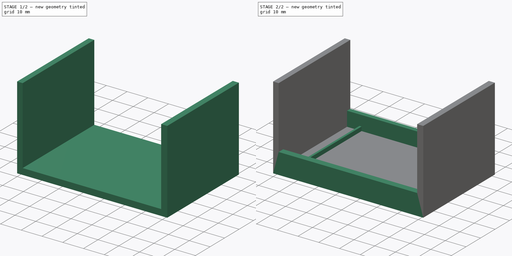
[diagram: build sequence overview — one tinted view per stage of 2, left to right]
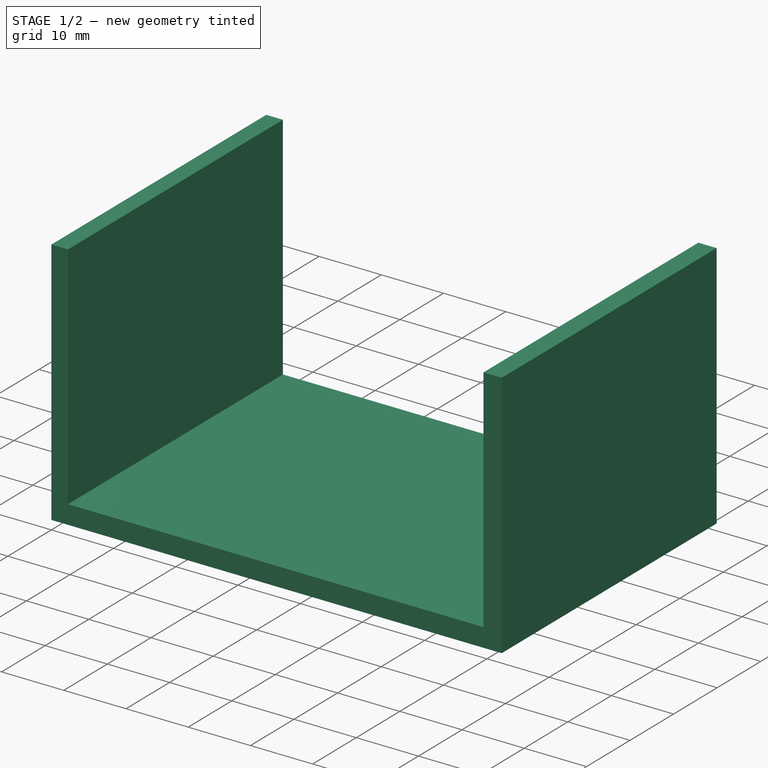
[diagram: stage 1 of 2 — iso view after this stage's code; geometry added in this stage tinted green]
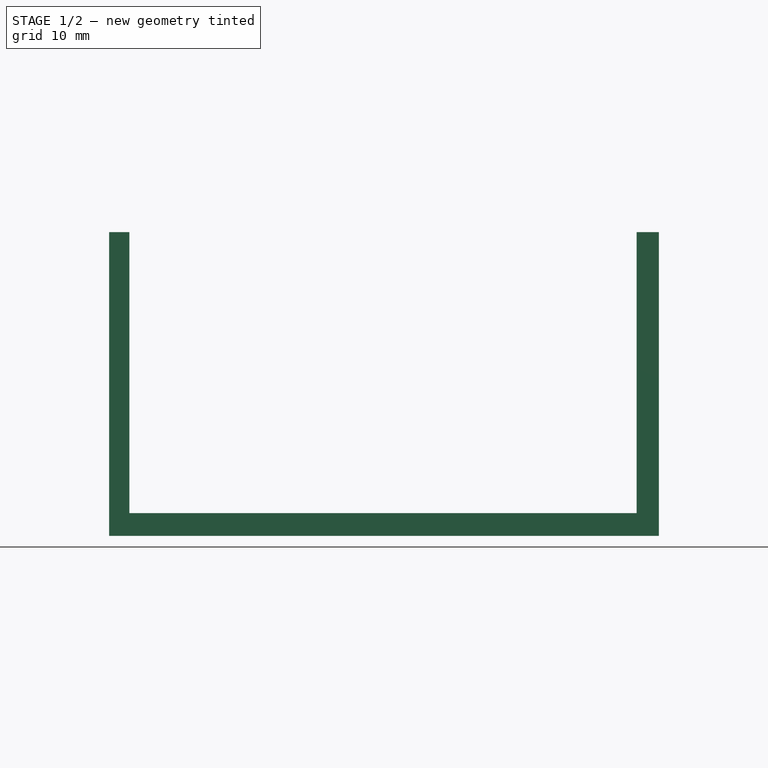
[diagram: stage 1 of 2 — front view after this stage's code; geometry added in this stage tinted green]
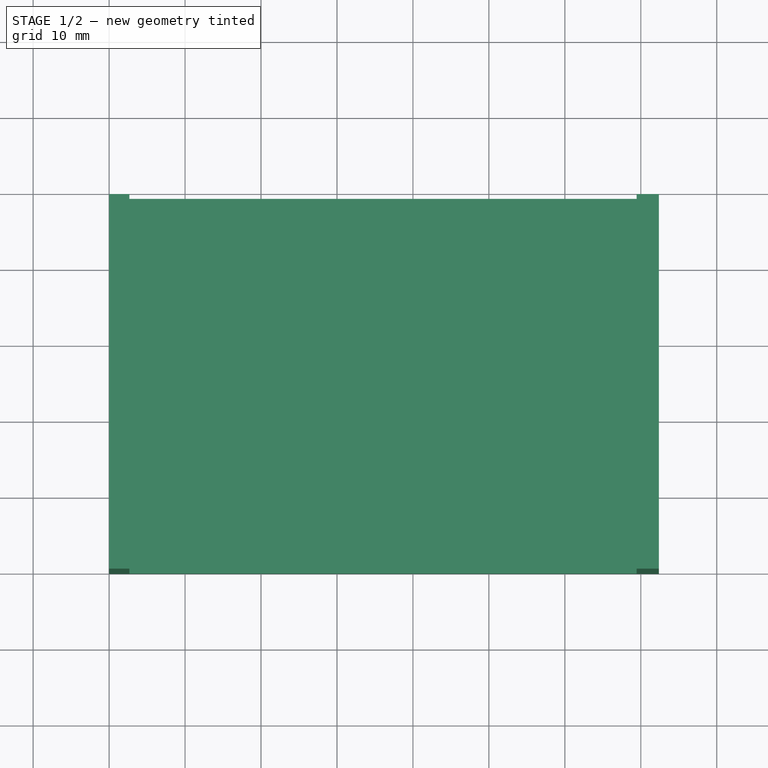
[diagram: stage 1 of 2 — top view after this stage's code; geometry added in this stage tinted green]
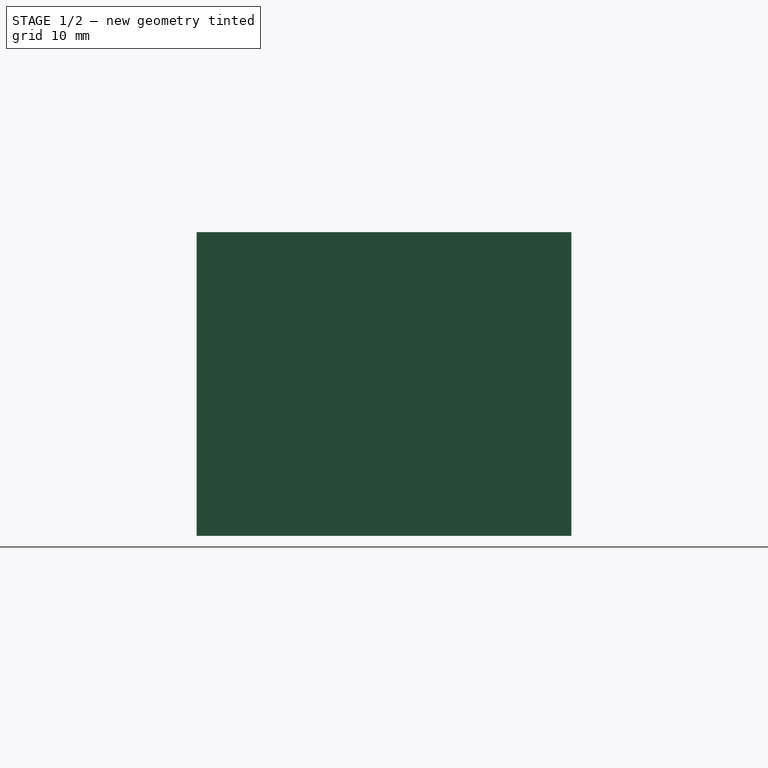
[diagram: stage 1 of 2 — right view after this stage's code; geometry added in this stage tinted green]
FCSTD DOCUMENT  (FreeCAD 1.0R39109 (Git))
Label: noodleStorage
License: All rights reserved
LicenseURL: https://en.wikipedia.org/wiki/All_rights_reserved
objects: PartDesign::Pad×3, Sketcher::SketchObject×1, PartDesign::AdditiveBox×1, PartDesign::Body×1
note: 15 computed .brp shape members not serialized (recipe doc carries the construction recipe); baked Part::Feature solids carry a one-line shape summary decoded from their .brp

FEATURE [Sketcher::SketchObject] Sketch
  ArcFitTolerance = 1e-06
  AttachmentSupport = -> [XY_Plane]
  FullyConstrained = false
  MakeInternals = false
  MapMode = 5
  sketch-geometry (16):
    g0: LineSegment StartX=72.378 StartY=0 StartZ=0 EndX=72.378 EndY=49.3309 EndZ=0
    g1: LineSegment StartX=0 StartY=49.3309 StartZ=0 EndX=0 EndY=0 EndZ=0
    g2: LineSegment StartX=2.67114 StartY=3.10515 StartZ=0 EndX=69.4431 EndY=3.10515 EndZ=0
    g3: LineSegment StartX=69.4431 StartY=3.10515 StartZ=0 EndX=69.4431 EndY=47.0914 EndZ=0
    g4: LineSegment StartX=69.4431 StartY=47.0914 StartZ=0 EndX=2.67114 EndY=47.0914 EndZ=0
    g5: LineSegment StartX=2.67114 StartY=47.0914 StartZ=0 EndX=2.67114 EndY=3.10515 EndZ=0
    g6: LineSegment StartX=2.67114 StartY=3.10515 StartZ=0 EndX=2.67114 EndY=0 EndZ=0
    g7: LineSegment StartX=69.4431 StartY=3.10515 StartZ=0 EndX=69.4431 EndY=0 EndZ=0
    g8: LineSegment StartX=0 StartY=0 StartZ=0 EndX=2.67114 EndY=0 EndZ=0
    g9: LineSegment StartX=2.67114 StartY=0 StartZ=0 EndX=69.4431 EndY=0 EndZ=0
    g10: LineSegment StartX=69.4431 StartY=0 StartZ=0 EndX=72.378 EndY=0 EndZ=0
    g11: LineSegment StartX=2.67114 StartY=47.0914 StartZ=0 EndX=2.67114 EndY=49.3309 EndZ=0
    g12: LineSegment StartX=69.4431 StartY=47.0914 StartZ=0 EndX=69.4431 EndY=49.3309 EndZ=0
    g13: LineSegment StartX=0 StartY=49.3309 StartZ=0 EndX=2.67114 EndY=49.3309 EndZ=0
    g14: LineSegment StartX=2.67114 StartY=49.3309 StartZ=0 EndX=69.4431 EndY=49.3309 EndZ=0
    g15: LineSegment StartX=69.4431 StartY=49.3309 StartZ=0 EndX=72.378 EndY=49.3309 EndZ=0
  constraints (37):
    c: Vertical(g0)
    c: Vertical(g1)
    c: Horizontal(g2)
    c: Coincident(g3,g2)
    c: Vertical(g3)
    c: Coincident(g4,g3)
    c: Horizontal(g4)
    c: Coincident(g5,g2)
    c: Vertical(g5)
    c: Coincident(g6,g2)
    c: Vertical(g6)
    c: Coincident(g7,g2)
    c: Vertical(g7)
    c: Coincident(g8,g1)
    c: Coincident(g8,g6)
    c: Horizontal(g8)
    c: Coincident(g9,g6)
    c: Coincident(g9,g7)
    c: Horizontal(g9)
    c: Coincident(g10,g7)
    c: Coincident(g10,g0)
    c: Horizontal(g10)
    c: Coincident(g5,g4)
    c: Coincident(g1,g-1)
    c: Coincident(g11,g4)
    c: Vertical(g11)
    c: Coincident(g12,g3)
    c: Vertical(g12)
    c: Coincident(g13,g1)
    c: Coincident(g13,g11)
    c: Horizontal(g13)
    c: Coincident(g14,g11)
    c: Coincident(g14,g12)
    c: Horizontal(g14)
    c: Coincident(g15,g12)
    c: Coincident(g15,g0)
    c: Horizontal(g15)
FEATURE [PartDesign::Pad] Pad
  Direction = (0,0,1)
  Length = 3
  Length2 = 10
  Profile = -> Sketch [Edge14,Edge13,Edge11,Edge9,Edge8,Edge7,Edge16,Edge15]
  ReferenceAxis = -> Sketch [N_Axis]
  Refine = true
  Suppressed = false
  Type = 0
FEATURE [PartDesign::Pad] Pad001
  BaseFeature = -> Pad
  Direction = (0,0,1)
  Length = 40
  Length2 = 10
  Profile = -> Sketch [Edge3,Edge14,Vertex5,Edge15,Edge4,Edge13,Edge12,Edge9,Edge10,Edge1,Edge8,Edge7,Edge6]
  ReferenceAxis = -> Sketch [N_Axis]
  Refine = true
  Suppressed = false
  Type = 0
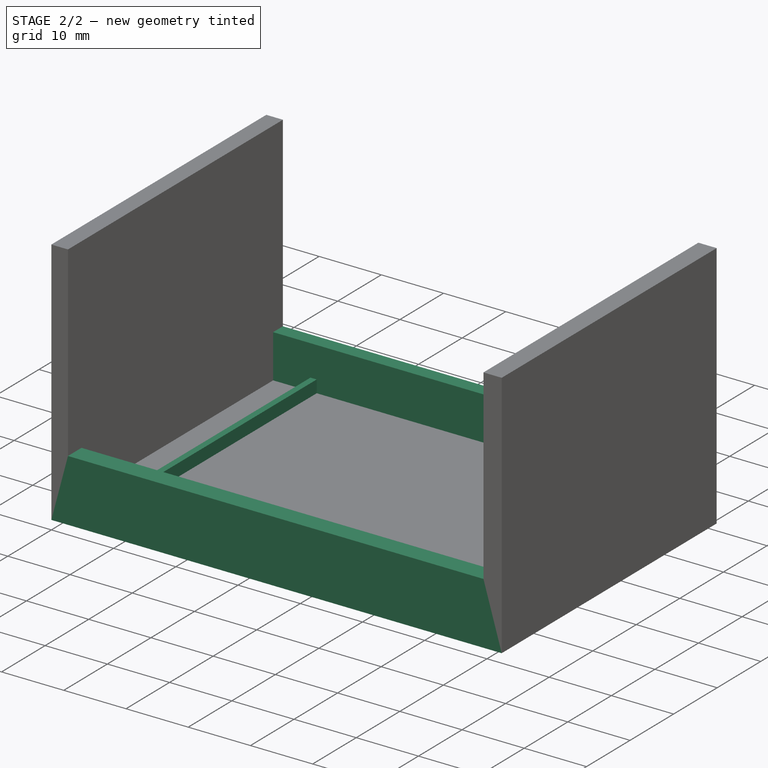
[diagram: stage 2 of 2 — iso view after this stage's code; geometry added in this stage tinted green]
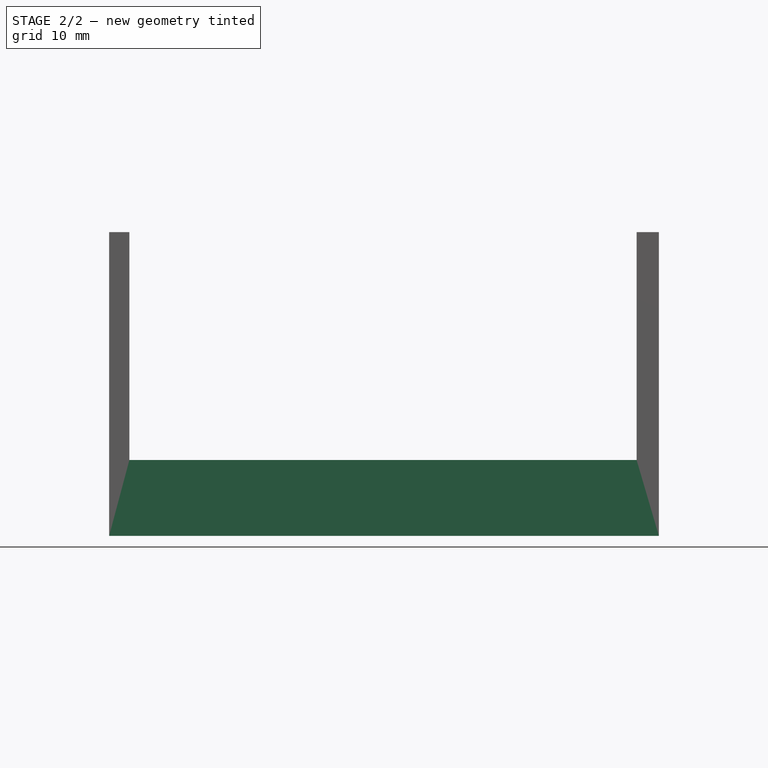
[diagram: stage 2 of 2 — front view after this stage's code; geometry added in this stage tinted green]
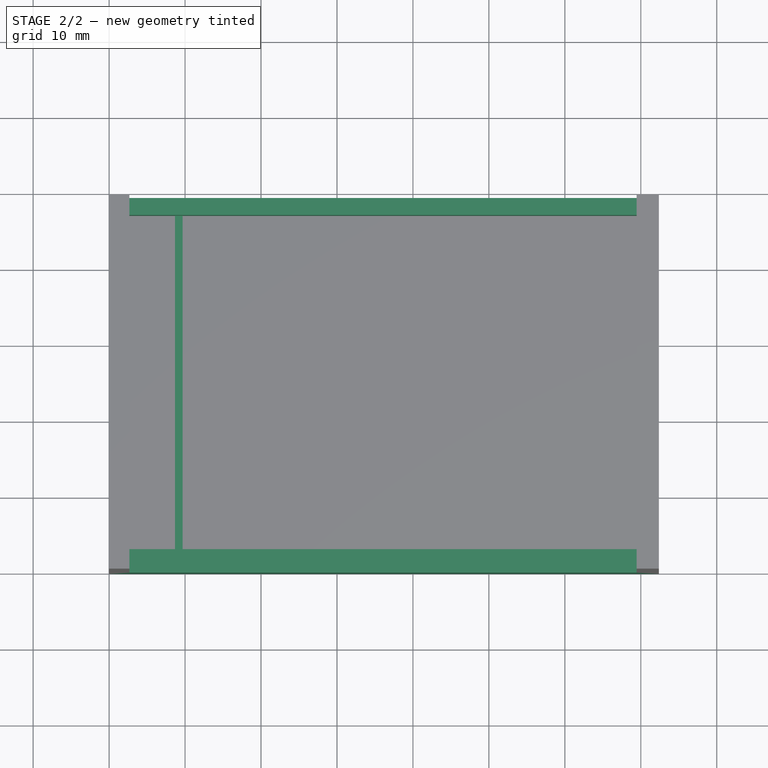
[diagram: stage 2 of 2 — top view after this stage's code; geometry added in this stage tinted green]
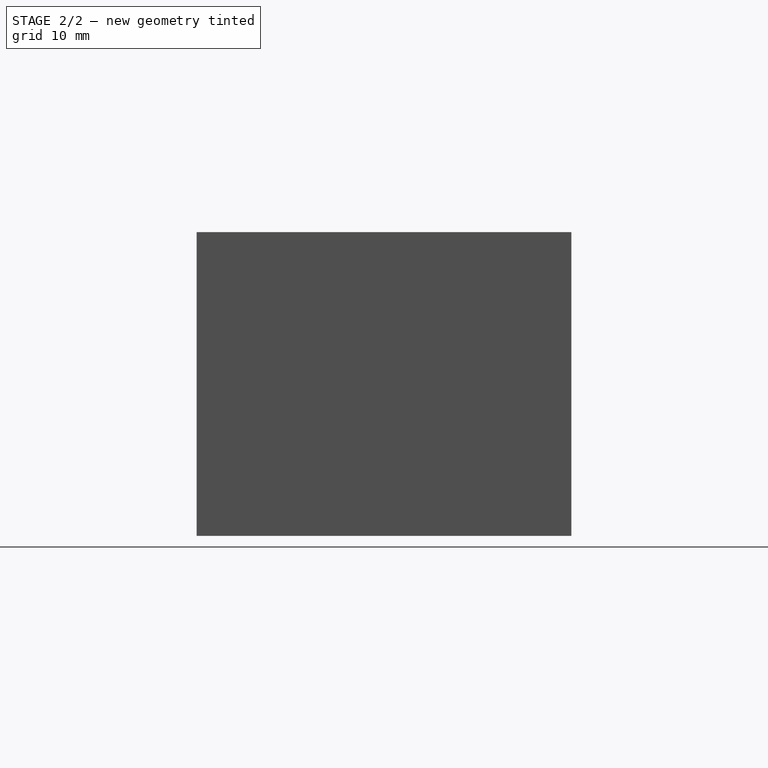
[diagram: stage 2 of 2 — right view after this stage's code; geometry added in this stage tinted green]
FEATURE [PartDesign::Pad] Pad002
  BaseFeature = -> Pad001
  Direction = (0,0,1)
  Length = 10
  Length2 = 10
  Profile = -> Sketch [Edge2,Edge11,Vertex3,Edge12,Edge10,Vertex6,Edge6,Edge5,Edge16,Edge4]
  ReferenceAxis = -> Sketch [N_Axis]
  Refine = true
  Suppressed = false
  Type = 0
FEATURE [PartDesign::AdditiveBox] Box
  AttacherType = Attacher::AttachEngine3D
  AttachmentOffset = pos=(6,-47,0) rot=(0,0,1;0rad)
  AttachmentSupport = -> [Pad002]
  BaseFeature = -> Pad002
  Height = 2
  Length = 1
  MapMode = 7
  Placement = pos=(8.67114,0.091362,3) rot=(0,0,1;0rad)
  Refine = true
  Suppressed = false
  Width = 47
  expr: .AttachmentOffset.Base.y = -Width
FEATURE [PartDesign::Body] Body
  AllowCompound = false
  Group = -> [Sketch,Pad,Pad001,Pad002,Box]
  Origin = -> Origin
  Tip = -> Box
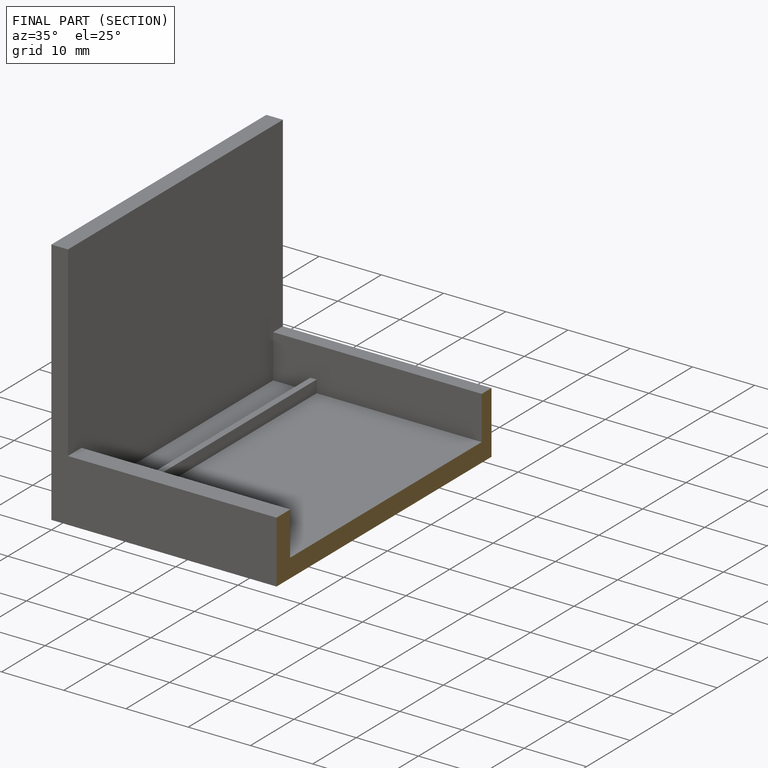
[diagram: finished part — half-section view (interior)]
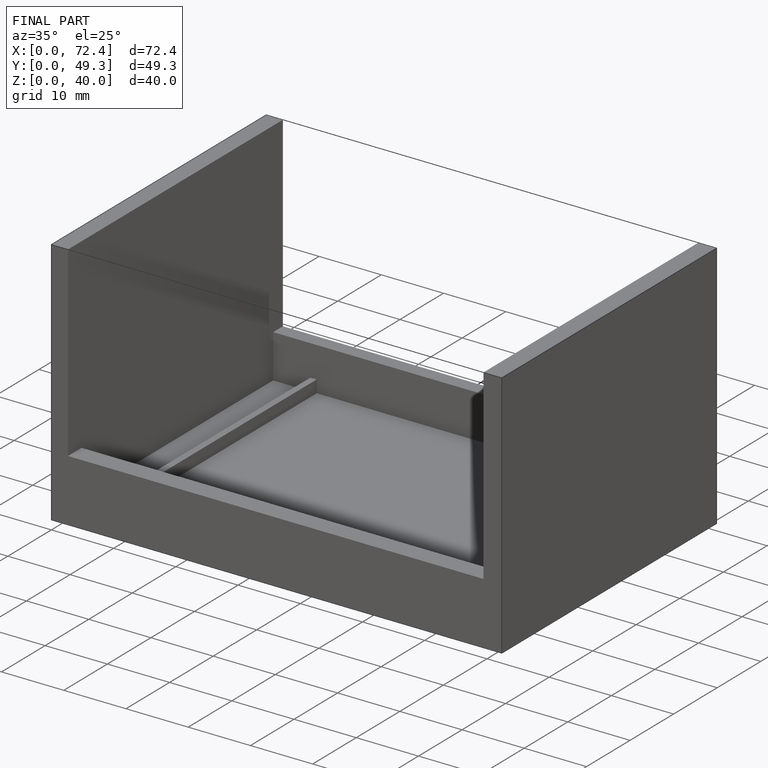
[diagram: finished part — iso view with bounding-box wireframe]
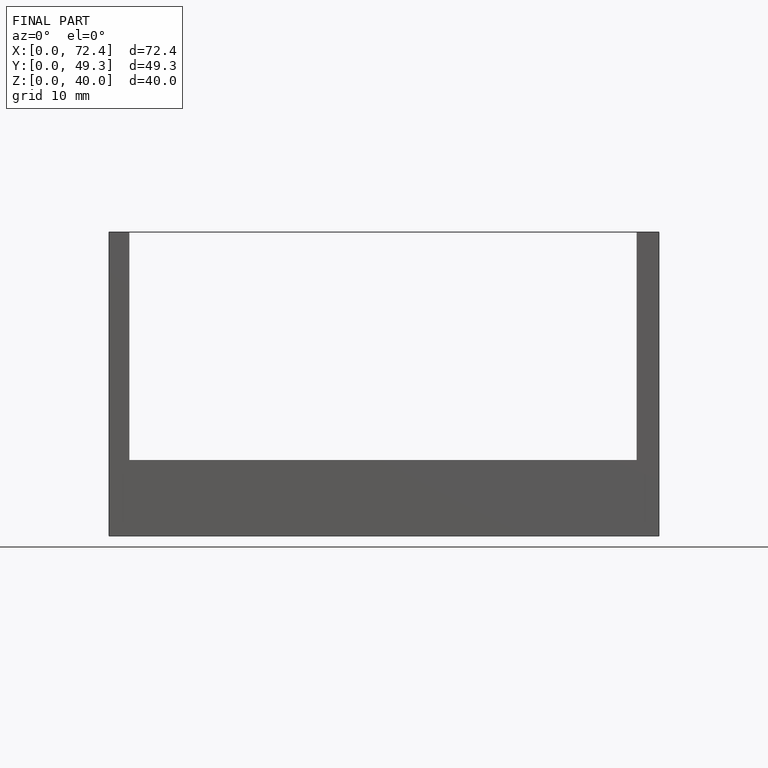
[diagram: finished part — front view with bounding-box wireframe]
